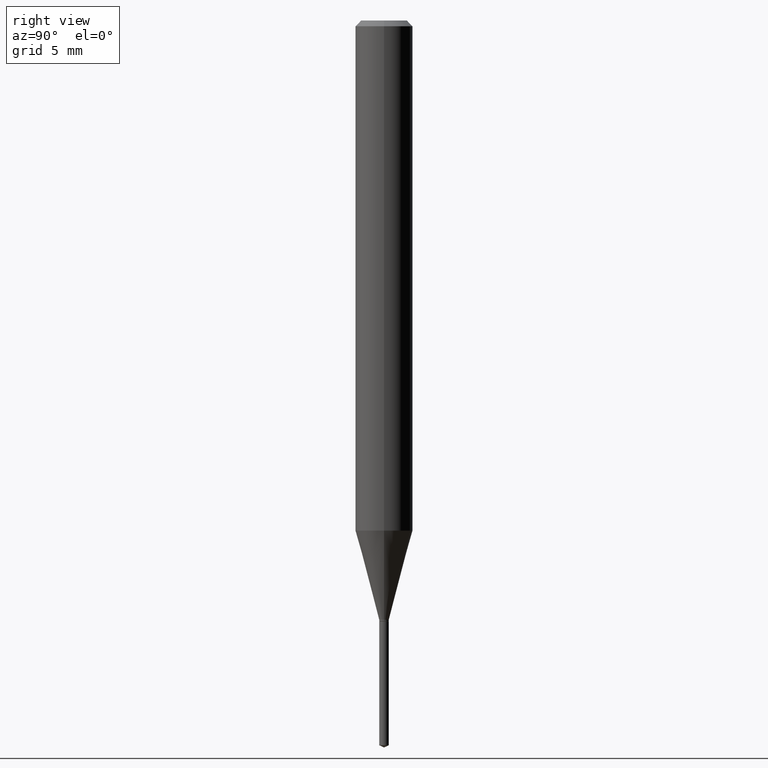
[diagram: clean part render]
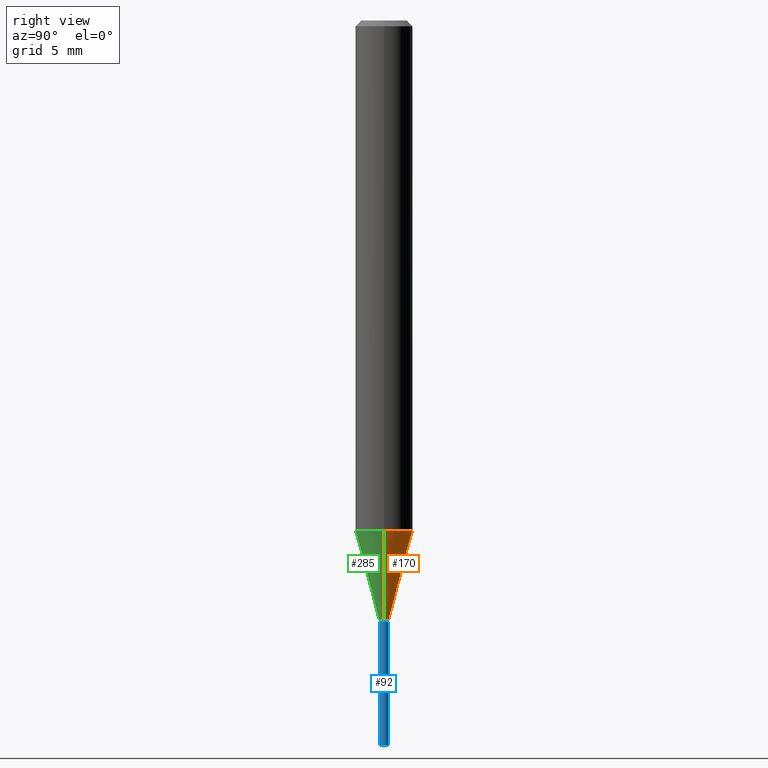
[diagram: same view with three faces highlighted in distinct colors, each labeled with its STEP entity id]
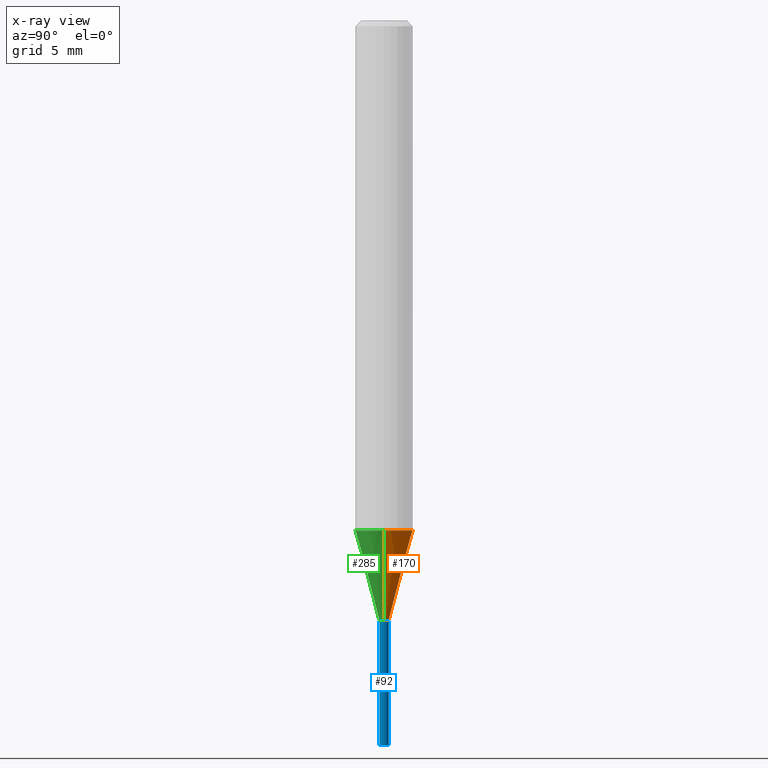
[diagram: x-ray of the same camera — body ghosted, the three highlighted faces saturated]
A machine part, right view with three faces highlighted in distinct colors.
The next image is the same camera in x-ray (body ghosted, the three faces saturated) — at least one of them is partly hidden behind the body in this view.
Their STEP definitions:

[orange] entity #170 — the highlighted conical surface has half-angle 15 deg.
#7 = CONICAL_SURFACE ( 'NONE', #207, 0.009849999999999999381, 0.2617993877991500740 ) ;
#14 = DIRECTION ( 'NONE',  ( 1.000000000000000000, -6.982962677686278543E-15, 0.000000000000000000 ) ) ;
#17 = EDGE_CURVE ( 'NONE', #196, #307, #276, .T. ) ;
#38 = VERTEX_POINT ( 'NONE', #381 ) ;
#62 = EDGE_CURVE ( 'NONE', #38, #376, #85, .T. ) ;
#66 = CARTESIAN_POINT ( 'NONE',  ( 3.015996678668129136E-29, -4.306043935195251097E-15, -1.233299999999999841 ) ) ;
#74 = VECTOR ( 'NONE', #368, 39.37007874015747433 ) ;
#85 = CIRCLE ( 'NONE', #93, 0.009849999999999999381 ) ;
#93 = AXIS2_PLACEMENT_3D ( 'NONE', #66, #142, #476 ) ;
#110 = CARTESIAN_POINT ( 'NONE',  ( 3.015996678668129136E-29, -4.306043935195251097E-15, -1.233299999999999841 ) ) ;
#142 = DIRECTION ( 'NONE',  ( -2.445468806185136597E-29, 3.491481338843145583E-15, 1.000000000000000000 ) ) ;
#163 = DIRECTION ( 'NONE',  ( -0.2588190451025213501, 5.211531920934551042E-15, 0.9659258262890682012 ) ) ;
#170 = ADVANCED_FACE ( 'NONE', ( #221 ), #7, .T. ) ;
#171 = VECTOR ( 'NONE', #163, 39.37007874015747433 ) ;
#177 = ORIENTED_EDGE ( 'NONE', *, *, #394, .F. ) ;
#196 = VERTEX_POINT ( 'NONE', #225 ) ;
#207 = AXIS2_PLACEMENT_3D ( 'NONE', #110, #371, #14 ) ;
#212 = EDGE_CURVE ( 'NONE', #376, #307, #246, .T. ) ;
#213 = CARTESIAN_POINT ( 'NONE',  ( -0.05905000000000013016, -3.245373470817042452E-15, -1.049683100267611247 ) ) ;
#221 = FACE_OUTER_BOUND ( 'NONE', #421, .T. ) ;
#225 = CARTESIAN_POINT ( 'NONE',  ( 0.05905000000000013016, -4.077292902400757654E-15, -1.049683100267611247 ) ) ;
#235 = ORIENTED_EDGE ( 'NONE', *, *, #17, .F. ) ;
#246 = LINE ( 'NONE', #356, #171 ) ;
#276 = CIRCLE ( 'NONE', #430, 0.05905000000000013710 ) ;
#307 = VERTEX_POINT ( 'NONE', #213 ) ;
#331 = DIRECTION ( 'NONE',  ( 1.000000000000000000, -6.982962677686264344E-15, 0.000000000000000000 ) ) ;
#333 = ORIENTED_EDGE ( 'NONE', *, *, #212, .T. ) ;
#356 = CARTESIAN_POINT ( 'NONE',  ( -0.009849999999999999381, -4.236055475722881048E-15, -1.233299999999999841 ) ) ;
#368 = DIRECTION ( 'NONE',  ( 0.2588190451025213501, 1.565188264969621968E-15, 0.9659258262890682012 ) ) ;
#371 = DIRECTION ( 'NONE',  ( -2.445468806185136597E-29, 3.491481338843145583E-15, 1.000000000000000000 ) ) ;
#376 = VERTEX_POINT ( 'NONE', #402 ) ;
#378 = CARTESIAN_POINT ( 'NONE',  ( 2.566967278084148050E-29, -3.664948956283382734E-15, -1.049683100267611247 ) ) ;
#381 = CARTESIAN_POINT ( 'NONE',  ( 0.009849999999999999381, -4.374826117570460704E-15, -1.233299999999999841 ) ) ;
#394 = EDGE_CURVE ( 'NONE', #38, #196, #438, .T. ) ;
#402 = CARTESIAN_POINT ( 'NONE',  ( -0.009849999999999999381, -4.240419827396435201E-15, -1.233299999999999841 ) ) ;
#421 = EDGE_LOOP ( 'NONE', ( #490, #333, #235, #177 ) ) ;
#430 = AXIS2_PLACEMENT_3D ( 'NONE', #378, #449, #331 ) ;
#438 = LINE ( 'NONE', #440, #74 ) ;
#440 = CARTESIAN_POINT ( 'NONE',  ( 0.009849999999999999381, -4.374826117570460704E-15, -1.233299999999999841 ) ) ;
#449 = DIRECTION ( 'NONE',  ( -2.445468806185136597E-29, 3.491481338843145583E-15, 1.000000000000000000 ) ) ;
#476 = DIRECTION ( 'NONE',  ( 1.000000000000000000, -6.982962677686278543E-15, 0.000000000000000000 ) ) ;
#490 = ORIENTED_EDGE ( 'NONE', *, *, #62, .T. ) ;

[blue] entity #92 — the highlighted cylindrical surface (edge-blend (fillet) strip) has radius 0.2502 mm, axis along (-0, 0, 1).
#1 = CARTESIAN_POINT ( 'NONE',  ( 6.998845947240637338E-17, 0.009849999999995683389, -1.236299999999999955 ) ) ;
#11 = EDGE_CURVE ( 'NONE', #386, #382, #415, .T. ) ;
#22 = EDGE_CURVE ( 'NONE', #382, #41, #312, .T. ) ;
#25 = AXIS2_PLACEMENT_3D ( 'NONE', #419, #97, #262 ) ;
#28 = DIRECTION ( 'NONE',  ( -2.434295203704088980E-29, 3.507482573557964514E-15, 1.000000000000000000 ) ) ;
#36 = CARTESIAN_POINT ( 'NONE',  ( 3.644581943626389528E-29, -5.211652026870922301E-15, -1.491506869567173377 ) ) ;
#41 = VERTEX_POINT ( 'NONE', #1 ) ;
#49 = ORIENTED_EDGE ( 'NONE', *, *, #11, .F. ) ;
#50 = ORIENTED_EDGE ( 'NONE', *, *, #445, .T. ) ;
#69 = CARTESIAN_POINT ( 'NONE',  ( 3.023333085086683703E-29, -4.316518379211780118E-15, -1.236299999999999955 ) ) ;
#92 = ADVANCED_FACE ( 'NONE', ( #479 ), #229, .T. ) ;
#95 = EDGE_CURVE ( 'NONE', #386, #271, #306, .T. ) ;
#97 = DIRECTION ( 'NONE',  ( -2.434295203704088980E-29, 3.507482573557964514E-15, 1.000000000000000000 ) ) ;
#115 = EDGE_LOOP ( 'NONE', ( #345, #50, #133, #49 ) ) ;
#133 = ORIENTED_EDGE ( 'NONE', *, *, #22, .F. ) ;
#135 = DIRECTION ( 'NONE',  ( -2.434295203704088980E-29, 3.507482573557964514E-15, 1.000000000000000000 ) ) ;
#193 = AXIS2_PLACEMENT_3D ( 'NONE', #69, #28, #483 ) ;
#194 = VECTOR ( 'NONE', #238, 39.37007874015748143 ) ;
#201 = AXIS2_PLACEMENT_3D ( 'NONE', #36, #135, #439 ) ;
#219 = CARTESIAN_POINT ( 'NONE',  ( -6.878218237517330726E-17, -0.009850000000005217429, -1.491506869567173377 ) ) ;
#229 = CYLINDRICAL_SURFACE ( 'NONE', #193, 0.009850000000000001116 ) ;
#232 = CARTESIAN_POINT ( 'NONE',  ( -6.878218237517948257E-17, -0.009850000000004317108, -1.236299999999999955 ) ) ;
#238 = DIRECTION ( 'NONE',  ( -2.434295203704088980E-29, 3.507482573557964120E-15, 1.000000000000000000 ) ) ;
#262 = DIRECTION ( 'NONE',  ( -6.982962677686265133E-15, -1.000000000000000000, 0.000000000000000000 ) ) ;
#271 = VERTEX_POINT ( 'NONE', #362 ) ;
#306 = CIRCLE ( 'NONE', #201, 0.009850000000000002850 ) ;
#310 = CARTESIAN_POINT ( 'NONE',  ( 6.998845947240009947E-17, 0.009849999999995685124, -1.236299999999999955 ) ) ;
#312 = CIRCLE ( 'NONE', #25, 0.009849999999999999381 ) ;
#322 = CARTESIAN_POINT ( 'NONE',  ( -6.878218237517947024E-17, -0.009850000000004313638, -1.236299999999999955 ) ) ;
#337 = DIRECTION ( 'NONE',  ( -2.434295203704088980E-29, 3.507482573557964120E-15, 1.000000000000000000 ) ) ;
#345 = ORIENTED_EDGE ( 'NONE', *, *, #95, .T. ) ;
#347 = LINE ( 'NONE', #310, #194 ) ;
#362 = CARTESIAN_POINT ( 'NONE',  ( 6.998845947240633640E-17, 0.009849999999994793476, -1.491506869567173377 ) ) ;
#382 = VERTEX_POINT ( 'NONE', #322 ) ;
#386 = VERTEX_POINT ( 'NONE', #219 ) ;
#415 = LINE ( 'NONE', #232, #472 ) ;
#419 = CARTESIAN_POINT ( 'NONE',  ( 3.023333085086683703E-29, -4.316518379211780118E-15, -1.236299999999999955 ) ) ;
#439 = DIRECTION ( 'NONE',  ( -6.982962677686265922E-15, -1.000000000000000000, 0.000000000000000000 ) ) ;
#445 = EDGE_CURVE ( 'NONE', #271, #41, #347, .T. ) ;
#472 = VECTOR ( 'NONE', #337, 39.37007874015748143 ) ;
#479 = FACE_OUTER_BOUND ( 'NONE', #115, .T. ) ;
#483 = DIRECTION ( 'NONE',  ( -6.982962677686265133E-15, -1.000000000000000000, 0.000000000000000000 ) ) ;

[green] entity #285 — the highlighted conical surface has half-angle 15 deg.
#38 = VERTEX_POINT ( 'NONE', #381 ) ;
#44 = ORIENTED_EDGE ( 'NONE', *, *, #122, .F. ) ;
#45 = CONICAL_SURFACE ( 'NONE', #120, 0.009849999999999999381, 0.2617993877991500740 ) ;
#63 = AXIS2_PLACEMENT_3D ( 'NONE', #127, #399, #423 ) ;
#73 = AXIS2_PLACEMENT_3D ( 'NONE', #253, #100, #226 ) ;
#74 = VECTOR ( 'NONE', #368, 39.37007874015747433 ) ;
#98 = CARTESIAN_POINT ( 'NONE',  ( 3.015996678668129136E-29, -4.306043935195251097E-15, -1.233299999999999841 ) ) ;
#100 = DIRECTION ( 'NONE',  ( -2.445468806185136597E-29, 3.491481338843145583E-15, 1.000000000000000000 ) ) ;
#113 = ORIENTED_EDGE ( 'NONE', *, *, #394, .T. ) ;
#120 = AXIS2_PLACEMENT_3D ( 'NONE', #98, #263, #223 ) ;
#122 = EDGE_CURVE ( 'NONE', #307, #196, #442, .T. ) ;
#127 = CARTESIAN_POINT ( 'NONE',  ( 3.015996678668129136E-29, -4.306043935195251097E-15, -1.233299999999999841 ) ) ;
#163 = DIRECTION ( 'NONE',  ( -0.2588190451025213501, 5.211531920934551042E-15, 0.9659258262890682012 ) ) ;
#171 = VECTOR ( 'NONE', #163, 39.37007874015747433 ) ;
#196 = VERTEX_POINT ( 'NONE', #225 ) ;
#198 = ORIENTED_EDGE ( 'NONE', *, *, #212, .F. ) ;
#212 = EDGE_CURVE ( 'NONE', #376, #307, #246, .T. ) ;
#213 = CARTESIAN_POINT ( 'NONE',  ( -0.05905000000000013016, -3.245373470817042452E-15, -1.049683100267611247 ) ) ;
#223 = DIRECTION ( 'NONE',  ( 1.000000000000000000, -6.982962677686278543E-15, 0.000000000000000000 ) ) ;
#225 = CARTESIAN_POINT ( 'NONE',  ( 0.05905000000000013016, -4.077292902400757654E-15, -1.049683100267611247 ) ) ;
#226 = DIRECTION ( 'NONE',  ( 1.000000000000000000, -6.982962677686264344E-15, 0.000000000000000000 ) ) ;
#246 = LINE ( 'NONE', #356, #171 ) ;
#248 = CIRCLE ( 'NONE', #63, 0.009849999999999999381 ) ;
#253 = CARTESIAN_POINT ( 'NONE',  ( 2.566967278084148050E-29, -3.664948956283382734E-15, -1.049683100267611247 ) ) ;
#263 = DIRECTION ( 'NONE',  ( -2.445468806185136597E-29, 3.491481338843145583E-15, 1.000000000000000000 ) ) ;
#269 = EDGE_CURVE ( 'NONE', #376, #38, #248, .T. ) ;
#285 = ADVANCED_FACE ( 'NONE', ( #330 ), #45, .T. ) ;
#305 = ORIENTED_EDGE ( 'NONE', *, *, #269, .T. ) ;
#307 = VERTEX_POINT ( 'NONE', #213 ) ;
#330 = FACE_OUTER_BOUND ( 'NONE', #406, .T. ) ;
#356 = CARTESIAN_POINT ( 'NONE',  ( -0.009849999999999999381, -4.236055475722881048E-15, -1.233299999999999841 ) ) ;
#368 = DIRECTION ( 'NONE',  ( 0.2588190451025213501, 1.565188264969621968E-15, 0.9659258262890682012 ) ) ;
#376 = VERTEX_POINT ( 'NONE', #402 ) ;
#381 = CARTESIAN_POINT ( 'NONE',  ( 0.009849999999999999381, -4.374826117570460704E-15, -1.233299999999999841 ) ) ;
#394 = EDGE_CURVE ( 'NONE', #38, #196, #438, .T. ) ;
#399 = DIRECTION ( 'NONE',  ( -2.445468806185136597E-29, 3.491481338843145583E-15, 1.000000000000000000 ) ) ;
#402 = CARTESIAN_POINT ( 'NONE',  ( -0.009849999999999999381, -4.240419827396435201E-15, -1.233299999999999841 ) ) ;
#406 = EDGE_LOOP ( 'NONE', ( #198, #305, #113, #44 ) ) ;
#423 = DIRECTION ( 'NONE',  ( 1.000000000000000000, -6.982962677686278543E-15, 0.000000000000000000 ) ) ;
#438 = LINE ( 'NONE', #440, #74 ) ;
#440 = CARTESIAN_POINT ( 'NONE',  ( 0.009849999999999999381, -4.374826117570460704E-15, -1.233299999999999841 ) ) ;
#442 = CIRCLE ( 'NONE', #73, 0.05905000000000013710 ) ;